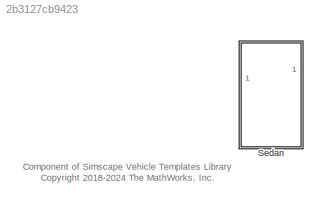
MODEL slx_2b3127cb9423
KIND library
CONFIG AbsTol = auto
CONFIG EnableMultiTasking = off
CONFIG FixedStep = auto
CONFIG MaxStep = auto
CONFIG MinStep = auto
CONFIG RelTol = 1e-3
CONFIG SampleTimeConstraint = Unconstrained
CONFIG SolverName = VariableStepAuto
CONFIG StartTime = 0.0
CONFIG StopTime = 10.0
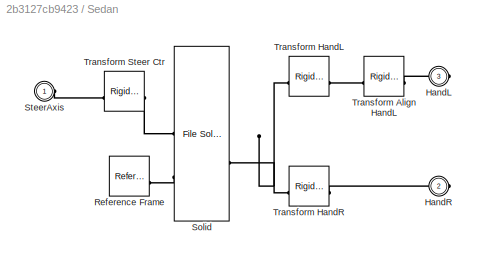
BLOCK [SubSystem] Sedan
BLOCK [PMIOPort] Sedan/HandL
  Port = 3
  Side = Right
BLOCK [PMIOPort] Sedan/HandR
  Port = 2
  Side = Right
BLOCK [Reference] Sedan/Reference Frame  REF=sm_lib/Frames and
Transforms/Reference
Frame
  SourceBlock = sm_lib/Frames and\nTransforms/Reference\nFrame
  SourceType = Reference\nFrame
BLOCK [Reference] Sedan/Solid  REF=sm_lib/Body Elements/File Solid
  SourceBlock = sm_lib/Body Elements/File Solid
  SourceType = File Solid
BLOCK [PMIOPort] Sedan/SteerAxis
  Side = Left
BLOCK [Reference] Sedan/Transform Align HandL  REF=sm_lib/Frames and
Transforms/Rigid
Transform
  SourceBlock = sm_lib/Frames and\nTransforms/Rigid\nTransform
  SourceType = Rigid\nTransform
BLOCK [Reference] Sedan/Transform HandL  REF=sm_lib/Frames and
Transforms/Rigid
Transform
  SourceBlock = sm_lib/Frames and\nTransforms/Rigid\nTransform
  SourceType = Rigid\nTransform
BLOCK [Reference] Sedan/Transform HandR  REF=sm_lib/Frames and
Transforms/Rigid
Transform
  SourceBlock = sm_lib/Frames and\nTransforms/Rigid\nTransform
  SourceType = Rigid\nTransform
BLOCK [Reference] Sedan/Transform Steer Ctr  REF=sm_lib/Frames and
Transforms/Rigid
Transform
  SourceBlock = sm_lib/Frames and\nTransforms/Rigid\nTransform
  SourceType = Rigid\nTransform
ANNOTATION (root): Component of Simscape Vehicle Templates Library <copyright redacted>
PLINE Sedan/HandL:RConn1 -- Sedan/Transform Align HandL:RConn1
PLINE Sedan/HandR:RConn1 -- Sedan/Transform HandR:RConn1
PLINE Sedan/Reference Frame:RConn1 -- Sedan/Solid:LConn2
PLINE Sedan/Solid:LConn1 -- Sedan/Transform Steer Ctr:LConn1
PNET net1: Sedan/Solid:RConn1 -- Sedan/Transform HandL:LConn1 -- Sedan/Transform HandR:LConn1
PLINE Sedan/SteerAxis:RConn1 -- Sedan/Transform Steer Ctr:RConn1
PLINE Sedan/Transform Align HandL:LConn1 -- Sedan/Transform HandL:RConn1
note: PNET lines group multi-terminal physical nets as a canonical sorted terminal list (undirected conserving connections); 2-terminal nets keep the pairwise PLINE form
